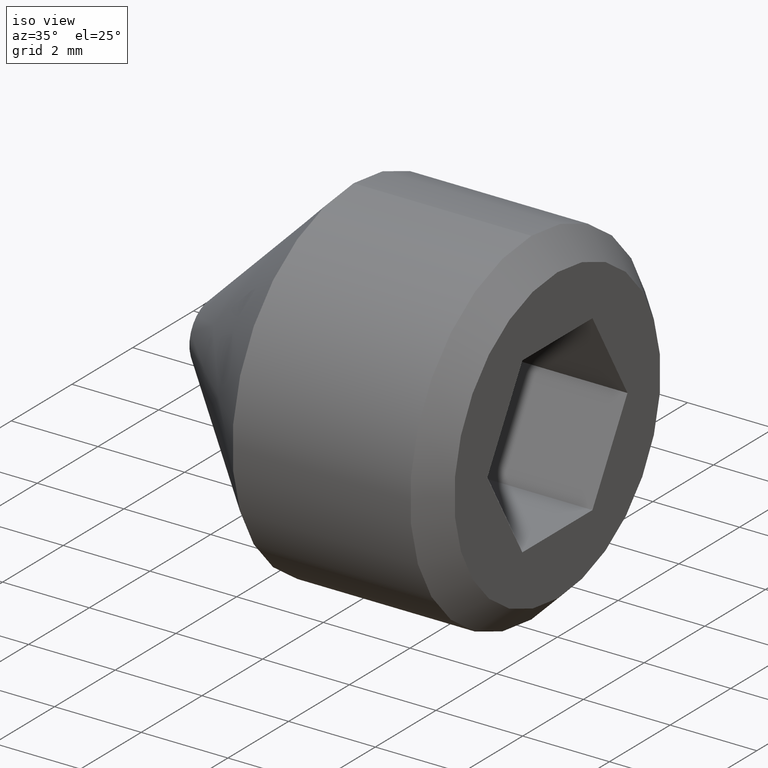
[diagram: clean part render]
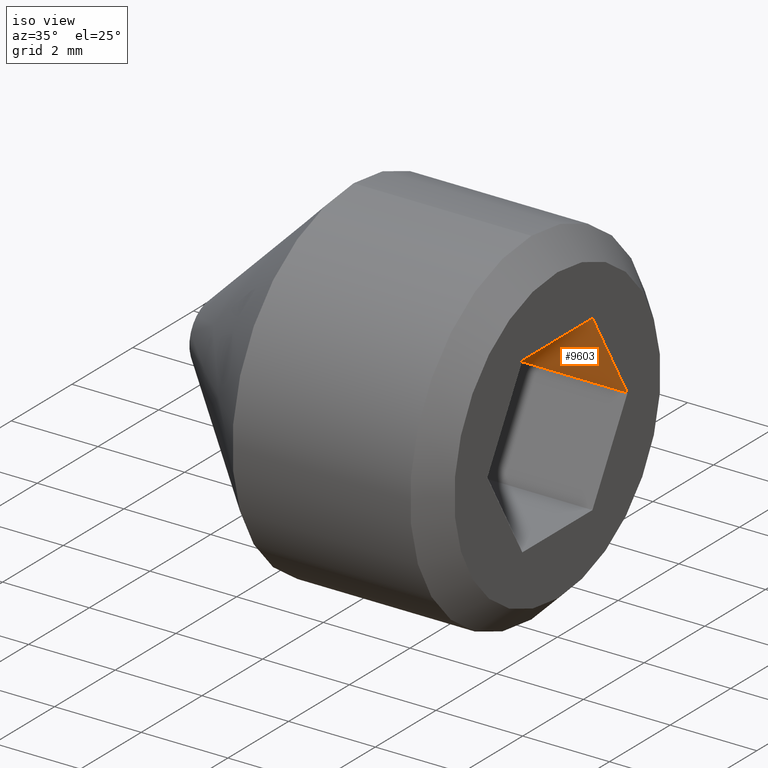
[diagram: same view with one face highlighted and labeled with its STEP entity id]
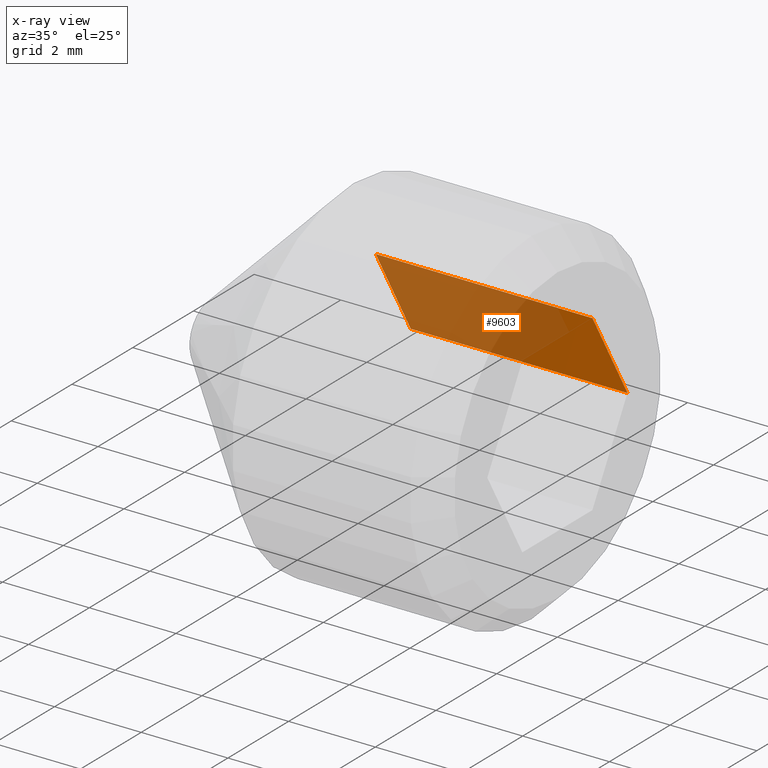
[diagram: x-ray of the same camera — body ghosted, the highlighted face saturated]
A machine part, iso view. The second image highlights one B-rep face of the part: STEP entity #9603.
The next image is the same camera in x-ray: the body ghosted, the highlighted face saturated — about 73% of this face is hidden behind the body in this view.
In plain terms, the highlighted planar face has unit normal (-0, 0.866, 0.5).
Its self-contained STEP definition (entity closure, byte-faithful):
#577 = DIRECTION ( 'NONE',  ( 1.000000000000000000, -0.0000000000000000000, 6.123031769111886300E-017 ) ) ;
#711 = FACE_OUTER_BOUND ( 'NONE', #7997, .T. ) ;
#763 = PLANE ( 'NONE',  #4314 ) ;
#950 = LINE ( 'NONE', #1221, #10441 ) ;
#1221 = CARTESIAN_POINT ( 'NONE',  ( 8.000000000000000000, 2.309401076758503400, -8.844675031407550400E-016 ) ) ;
#1376 = CARTESIAN_POINT ( 'NONE',  ( 3.000000000000000000, 2.309401076758503400, -1.190619091596349400E-015 ) ) ;
#1573 = CARTESIAN_POINT ( 'NONE',  ( 3.000000000000000000, 2.309401076758503400, -1.190619091596349400E-015 ) ) ;
#2029 = CARTESIAN_POINT ( 'NONE',  ( 8.000000000000000000, 2.309401076758503400, -8.844675031407550400E-016 ) ) ;
#2436 = LINE ( 'NONE', #1376, #11902 ) ;
#2714 = VERTEX_POINT ( 'NONE', #8653 ) ;
#3028 = EDGE_CURVE ( 'NONE', #3137, #2714, #950, .T. ) ;
#3137 = VERTEX_POINT ( 'NONE', #2029 ) ;
#3193 = CARTESIAN_POINT ( 'NONE',  ( 3.000000000000000000, 2.309401076758503400, -1.190619091596349400E-015 ) ) ;
#3244 = ORIENTED_EDGE ( 'NONE', *, *, #3028, .T. ) ;
#3298 = VECTOR ( 'NONE', #577, 1000.000000000000000 ) ;
#3358 = CARTESIAN_POINT ( 'NONE',  ( 3.000000000000000000, 1.154700538379252100, 1.999999999999999600 ) ) ;
#4156 = ORIENTED_EDGE ( 'NONE', *, *, #11853, .F. ) ;
#4215 = CARTESIAN_POINT ( 'NONE',  ( 3.000000000000000000, 1.154700538379252100, 1.999999999999999600 ) ) ;
#4314 = AXIS2_PLACEMENT_3D ( 'NONE', #1573, #5377, #11648 ) ;
#4821 = CARTESIAN_POINT ( 'NONE',  ( 3.000000000000000000, 2.309401076758503400, -1.190619091596349400E-015 ) ) ;
#5042 = LINE ( 'NONE', #4215, #3298 ) ;
#5341 = LINE ( 'NONE', #4821, #10067 ) ;
#5377 = DIRECTION ( 'NONE',  ( -3.061515884555941300E-017, 0.8660254037844388200, 0.4999999999999997200 ) ) ;
#6004 = ORIENTED_EDGE ( 'NONE', *, *, #11334, .T. ) ;
#7323 = VERTEX_POINT ( 'NONE', #3193 ) ;
#7997 = EDGE_LOOP ( 'NONE', ( #3244, #4156, #10768, #6004 ) ) ;
#8546 = DIRECTION ( 'NONE',  ( 0.0000000000000000000, -0.4999999999999997200, 0.8660254037844388200 ) ) ;
#8653 = CARTESIAN_POINT ( 'NONE',  ( 8.000000000000000000, 1.154700538379252100, 2.000000000000000000 ) ) ;
#9070 = VERTEX_POINT ( 'NONE', #3358 ) ;
#9603 = ADVANCED_FACE ( 'NONE', ( #711 ), #763, .F. ) ;
#10067 = VECTOR ( 'NONE', #11184, 1000.000000000000000 ) ;
#10077 = EDGE_CURVE ( 'NONE', #7323, #9070, #5341, .T. ) ;
#10441 = VECTOR ( 'NONE', #8546, 1000.000000000000000 ) ;
#10768 = ORIENTED_EDGE ( 'NONE', *, *, #10077, .F. ) ;
#11184 = DIRECTION ( 'NONE',  ( 0.0000000000000000000, -0.4999999999999997200, 0.8660254037844388200 ) ) ;
#11334 = EDGE_CURVE ( 'NONE', #7323, #3137, #2436, .T. ) ;
#11565 = DIRECTION ( 'NONE',  ( 1.000000000000000000, -0.0000000000000000000, 6.123031769111886300E-017 ) ) ;
#11648 = DIRECTION ( 'NONE',  ( 0.0000000000000000000, -0.4999999999999997200, 0.8660254037844388200 ) ) ;
#11853 = EDGE_CURVE ( 'NONE', #9070, #2714, #5042, .T. ) ;
#11902 = VECTOR ( 'NONE', #11565, 1000.000000000000000 ) ;